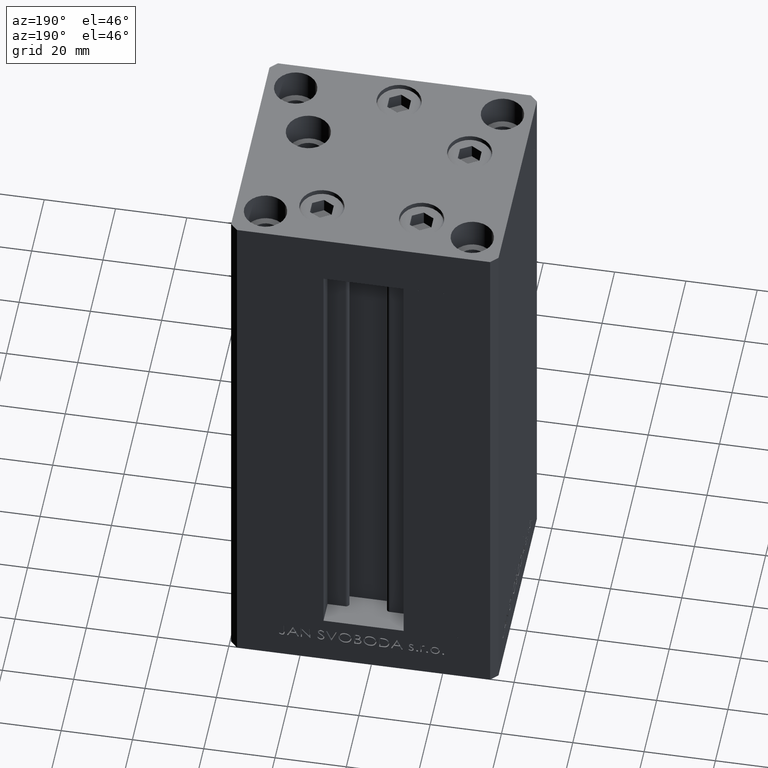
[diagram: clean part render]
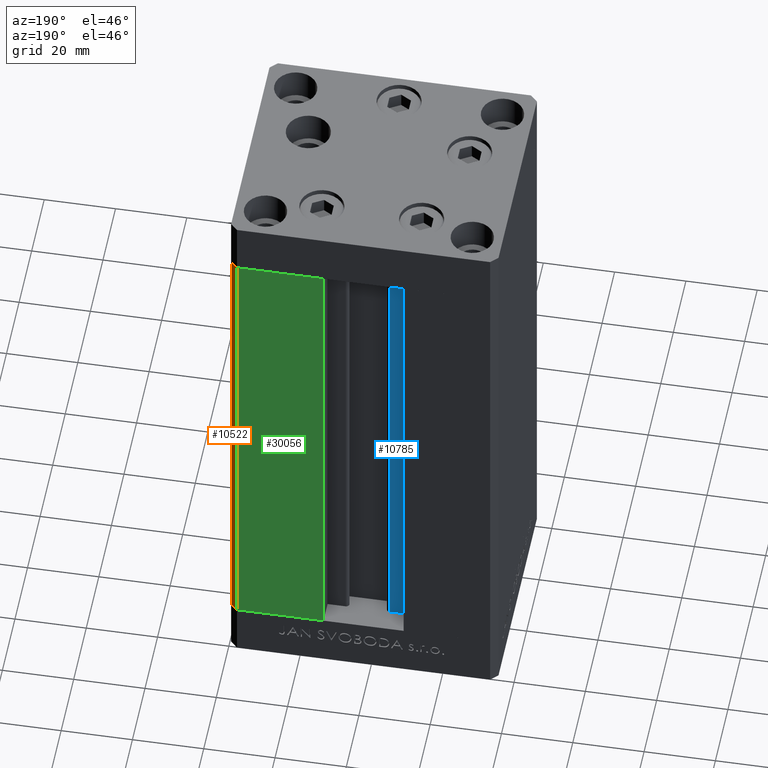
[diagram: same view with three faces highlighted in distinct colors, each labeled with its STEP entity id]
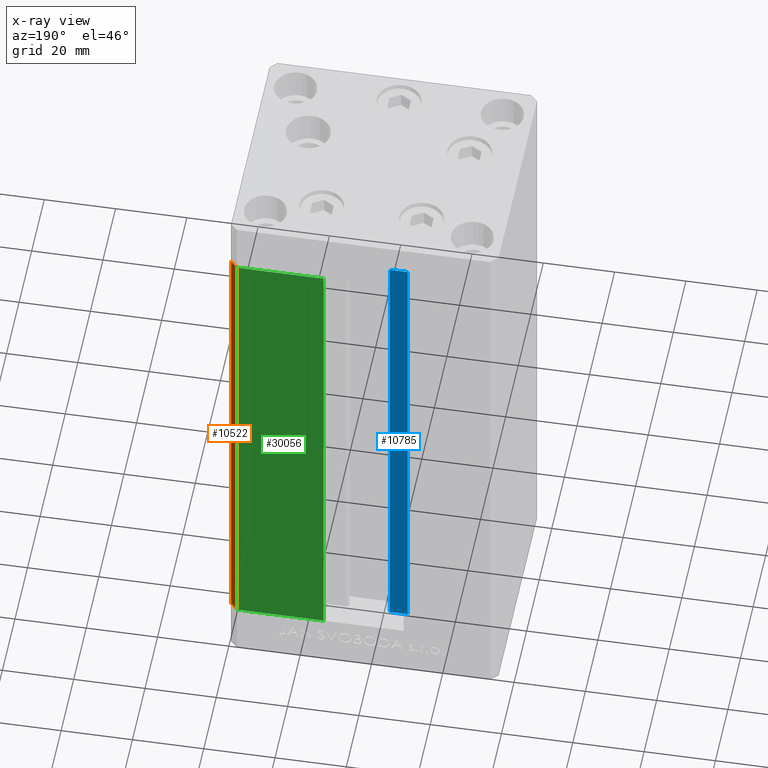
[diagram: x-ray of the same camera — body ghosted, the three highlighted faces saturated]
A machine part, auxiliary view with three faces highlighted in distinct colors.
The next image is the same camera in x-ray (body ghosted, the three faces saturated) — at least one of them is partly hidden behind the body in this view.
Their STEP definitions:

[orange] entity #10522 — the highlighted planar face has unit normal (0.7071, 0.7071, 0).
#2186 = CARTESIAN_POINT ( 'NONE',  ( 37.50000000000000711, 30.50000000000000000, 0.000000000000000000 ) ) ;
#2499 = CARTESIAN_POINT ( 'NONE',  ( 35.50000000000000000, 32.49999999999999289, 0.000000000000000000 ) ) ;
#2663 = VECTOR ( 'NONE', #22016, 1000.000000000000000 ) ;
#7436 = DIRECTION ( 'NONE',  ( 0.7071067811865500152, -0.7071067811865451302, 0.000000000000000000 ) ) ;
#8235 = ORIENTED_EDGE ( 'NONE', *, *, #47077, .T. ) ;
#8411 = AXIS2_PLACEMENT_3D ( 'NONE', #44849, #26515, #37905 ) ;
#10522 = ADVANCED_FACE ( 'NONE', ( #26993 ), #48804, .T. ) ;
#11383 = LINE ( 'NONE', #22997, #38099 ) ;
#11617 = LINE ( 'NONE', #37855, #2663 ) ;
#12295 = DIRECTION ( 'NONE',  ( 0.7071067811865500152, -0.7071067811865451302, 0.000000000000000000 ) ) ;
#12700 = ORIENTED_EDGE ( 'NONE', *, *, #33743, .T. ) ;
#19472 = LINE ( 'NONE', #34824, #29603 ) ;
#22016 = DIRECTION ( 'NONE',  ( -0.000000000000000000, -0.000000000000000000, -1.000000000000000000 ) ) ;
#22078 = CARTESIAN_POINT ( 'NONE',  ( 35.50000000000000000, 32.49999999999999289, 136.0000000000000000 ) ) ;
#22559 = VERTEX_POINT ( 'NONE', #22078 ) ;
#22997 = CARTESIAN_POINT ( 'NONE',  ( 35.50000000000000000, 32.49999999999999289, 0.000000000000000000 ) ) ;
#23347 = ORIENTED_EDGE ( 'NONE', *, *, #28988, .F. ) ;
#23779 = LINE ( 'NONE', #46550, #40508 ) ;
#25322 = VERTEX_POINT ( 'NONE', #2186 ) ;
#26515 = DIRECTION ( 'NONE',  ( 0.7071067811865451302, 0.7071067811865500152, -0.000000000000000000 ) ) ;
#26993 = FACE_OUTER_BOUND ( 'NONE', #44268, .T. ) ;
#28988 = EDGE_CURVE ( 'NONE', #34823, #25322, #11383, .T. ) ;
#29603 = VECTOR ( 'NONE', #12295, 1000.000000000000114 ) ;
#33743 = EDGE_CURVE ( 'NONE', #40443, #25322, #23779, .T. ) ;
#34823 = VERTEX_POINT ( 'NONE', #2499 ) ;
#34824 = CARTESIAN_POINT ( 'NONE',  ( 35.50000000000000000, 32.49999999999999289, 136.0000000000000000 ) ) ;
#35169 = DIRECTION ( 'NONE',  ( -0.000000000000000000, -0.000000000000000000, -1.000000000000000000 ) ) ;
#36165 = CARTESIAN_POINT ( 'NONE',  ( 37.50000000000000711, 30.50000000000000000, 136.0000000000000000 ) ) ;
#37472 = ORIENTED_EDGE ( 'NONE', *, *, #44579, .F. ) ;
#37855 = CARTESIAN_POINT ( 'NONE',  ( 35.50000000000000000, 32.49999999999999289, 136.0000000000000000 ) ) ;
#37905 = DIRECTION ( 'NONE',  ( -0.7071067811865500152, 0.7071067811865451302, 0.000000000000000000 ) ) ;
#38099 = VECTOR ( 'NONE', #7436, 1000.000000000000114 ) ;
#40443 = VERTEX_POINT ( 'NONE', #36165 ) ;
#40508 = VECTOR ( 'NONE', #35169, 1000.000000000000000 ) ;
#44268 = EDGE_LOOP ( 'NONE', ( #23347, #37472, #8235, #12700 ) ) ;
#44579 = EDGE_CURVE ( 'NONE', #22559, #34823, #11617, .T. ) ;
#44849 = CARTESIAN_POINT ( 'NONE',  ( 35.50000000000000000, 32.49999999999999289, 136.0000000000000000 ) ) ;
#46550 = CARTESIAN_POINT ( 'NONE',  ( 37.50000000000000711, 30.50000000000000000, 136.0000000000000000 ) ) ;
#47077 = EDGE_CURVE ( 'NONE', #22559, #40443, #19472, .T. ) ;
#48804 = PLANE ( 'NONE',  #8411 ) ;

[blue] entity #10785 — the highlighted planar face has unit normal (0, -1, 0).
#1557 = DIRECTION ( 'NONE',  ( -0.000000000000000000, -0.000000000000000000, 1.000000000000000000 ) ) ;
#5561 = DIRECTION ( 'NONE',  ( -0.000000000000000000, -0.000000000000000000, 1.000000000000000000 ) ) ;
#8083 = CARTESIAN_POINT ( 'NONE',  ( -6.183333333334001480, 25.99999999999999289, 136.0000000000000000 ) ) ;
#8398 = FACE_OUTER_BOUND ( 'NONE', #39511, .T. ) ;
#9199 = DIRECTION ( 'NONE',  ( 1.000000000000000000, -0.000000000000000000, -0.000000000000000000 ) ) ;
#9292 = VECTOR ( 'NONE', #1557, 1000.000000000000000 ) ;
#10785 = ADVANCED_FACE ( 'NONE', ( #8398 ), #12335, .F. ) ;
#12335 = PLANE ( 'NONE',  #16305 ) ;
#13874 = CARTESIAN_POINT ( 'NONE',  ( -6.183333333334001480, 25.99999999999999289, 0.000000000000000000 ) ) ;
#14383 = DIRECTION ( 'NONE',  ( -1.000000000000000000, 0.000000000000000000, 0.000000000000000000 ) ) ;
#16096 = VECTOR ( 'NONE', #9199, 1000.000000000000000 ) ;
#16305 = AXIS2_PLACEMENT_3D ( 'NONE', #16536, #46239, #35602 ) ;
#16536 = CARTESIAN_POINT ( 'NONE',  ( -6.183333333334001480, 25.99999999999999289, 0.000000000000000000 ) ) ;
#16696 = EDGE_CURVE ( 'NONE', #34606, #46207, #20840, .T. ) ;
#18147 = ORIENTED_EDGE ( 'NONE', *, *, #16696, .T. ) ;
#20840 = LINE ( 'NONE', #35944, #9292 ) ;
#21357 = CARTESIAN_POINT ( 'NONE',  ( -6.183333333334001480, 25.99999999999999289, 0.000000000000000000 ) ) ;
#23157 = EDGE_CURVE ( 'NONE', #32219, #46207, #36184, .T. ) ;
#23804 = ORIENTED_EDGE ( 'NONE', *, *, #30536, .F. ) ;
#27821 = LINE ( 'NONE', #35504, #45167 ) ;
#28752 = CARTESIAN_POINT ( 'NONE',  ( 0.000000000000000000, 25.99999999999999289, 136.0000000000000000 ) ) ;
#29821 = CARTESIAN_POINT ( 'NONE',  ( -11.25000000000000178, 25.99999999999999289, 0.000000000000000000 ) ) ;
#30536 = EDGE_CURVE ( 'NONE', #35624, #32219, #27821, .T. ) ;
#32219 = VERTEX_POINT ( 'NONE', #8083 ) ;
#32691 = LINE ( 'NONE', #13874, #16096 ) ;
#33748 = ORIENTED_EDGE ( 'NONE', *, *, #23157, .F. ) ;
#34606 = VERTEX_POINT ( 'NONE', #29821 ) ;
#34786 = VECTOR ( 'NONE', #14383, 1000.000000000000000 ) ;
#35504 = CARTESIAN_POINT ( 'NONE',  ( -6.183333333334001480, 25.99999999999999289, 0.000000000000000000 ) ) ;
#35602 = DIRECTION ( 'NONE',  ( 0.000000000000000000, 0.000000000000000000, -1.000000000000000000 ) ) ;
#35624 = VERTEX_POINT ( 'NONE', #21357 ) ;
#35944 = CARTESIAN_POINT ( 'NONE',  ( -11.25000000000000178, 25.99999999999999289, 0.000000000000000000 ) ) ;
#36184 = LINE ( 'NONE', #28752, #34786 ) ;
#38286 = CARTESIAN_POINT ( 'NONE',  ( -11.25000000000000178, 25.99999999999999289, 136.0000000000000000 ) ) ;
#39511 = EDGE_LOOP ( 'NONE', ( #23804, #42206, #18147, #33748 ) ) ;
#42206 = ORIENTED_EDGE ( 'NONE', *, *, #45755, .F. ) ;
#45167 = VECTOR ( 'NONE', #5561, 1000.000000000000000 ) ;
#45755 = EDGE_CURVE ( 'NONE', #34606, #35624, #32691, .T. ) ;
#46207 = VERTEX_POINT ( 'NONE', #38286 ) ;
#46239 = DIRECTION ( 'NONE',  ( 0.000000000000000000, -1.000000000000000000, -0.000000000000000000 ) ) ;

[green] entity #30056 — the highlighted planar face has unit normal (0, -1, 0).
#2499 = CARTESIAN_POINT ( 'NONE',  ( 35.50000000000000000, 32.49999999999999289, 0.000000000000000000 ) ) ;
#2663 = VECTOR ( 'NONE', #22016, 1000.000000000000000 ) ;
#2894 = DIRECTION ( 'NONE',  ( -0.000000000000000000, -0.000000000000000000, 1.000000000000000000 ) ) ;
#3647 = ORIENTED_EDGE ( 'NONE', *, *, #6700, .T. ) ;
#4517 = PLANE ( 'NONE',  #9600 ) ;
#4956 = LINE ( 'NONE', #5200, #7236 ) ;
#5005 = FACE_OUTER_BOUND ( 'NONE', #35389, .T. ) ;
#5200 = CARTESIAN_POINT ( 'NONE',  ( 11.25000000000000178, 32.49999999999999289, 0.000000000000000000 ) ) ;
#5457 = VECTOR ( 'NONE', #8379, 1000.000000000000000 ) ;
#5838 = LINE ( 'NONE', #47892, #20372 ) ;
#6700 = EDGE_CURVE ( 'NONE', #34823, #19424, #39049, .T. ) ;
#7236 = VECTOR ( 'NONE', #2894, 1000.000000000000000 ) ;
#8379 = DIRECTION ( 'NONE',  ( -1.000000000000000000, 0.000000000000000000, 0.000000000000000000 ) ) ;
#8475 = CARTESIAN_POINT ( 'NONE',  ( -11.25000000000000178, 32.49999999999999289, 136.0000000000000000 ) ) ;
#9587 = ORIENTED_EDGE ( 'NONE', *, *, #13683, .T. ) ;
#9600 = AXIS2_PLACEMENT_3D ( 'NONE', #8475, #23550, #23304 ) ;
#9827 = CARTESIAN_POINT ( 'NONE',  ( 11.25000000000000178, 32.49999999999999289, 0.000000000000000000 ) ) ;
#11617 = LINE ( 'NONE', #37855, #2663 ) ;
#13683 = EDGE_CURVE ( 'NONE', #22617, #22559, #5838, .T. ) ;
#15543 = CARTESIAN_POINT ( 'NONE',  ( -11.25000000000000178, 32.49999999999999289, 0.000000000000000000 ) ) ;
#19424 = VERTEX_POINT ( 'NONE', #9827 ) ;
#20372 = VECTOR ( 'NONE', #43202, 1000.000000000000000 ) ;
#22016 = DIRECTION ( 'NONE',  ( -0.000000000000000000, -0.000000000000000000, -1.000000000000000000 ) ) ;
#22078 = CARTESIAN_POINT ( 'NONE',  ( 35.50000000000000000, 32.49999999999999289, 136.0000000000000000 ) ) ;
#22559 = VERTEX_POINT ( 'NONE', #22078 ) ;
#22617 = VERTEX_POINT ( 'NONE', #33224 ) ;
#23304 = DIRECTION ( 'NONE',  ( 0.000000000000000000, -0.000000000000000000, -1.000000000000000000 ) ) ;
#23550 = DIRECTION ( 'NONE',  ( 0.000000000000000000, -1.000000000000000000, 0.000000000000000000 ) ) ;
#26636 = EDGE_CURVE ( 'NONE', #19424, #22617, #4956, .T. ) ;
#30056 = ADVANCED_FACE ( 'NONE', ( #5005 ), #4517, .F. ) ;
#33224 = CARTESIAN_POINT ( 'NONE',  ( 11.24999999999999467, 32.49999999999999289, 136.0000000000000000 ) ) ;
#34374 = ORIENTED_EDGE ( 'NONE', *, *, #44579, .T. ) ;
#34817 = ORIENTED_EDGE ( 'NONE', *, *, #26636, .T. ) ;
#34823 = VERTEX_POINT ( 'NONE', #2499 ) ;
#35389 = EDGE_LOOP ( 'NONE', ( #3647, #34817, #9587, #34374 ) ) ;
#37855 = CARTESIAN_POINT ( 'NONE',  ( 35.50000000000000000, 32.49999999999999289, 136.0000000000000000 ) ) ;
#39049 = LINE ( 'NONE', #15543, #5457 ) ;
#43202 = DIRECTION ( 'NONE',  ( 1.000000000000000000, 0.000000000000000000, 0.000000000000000000 ) ) ;
#44579 = EDGE_CURVE ( 'NONE', #22559, #34823, #11617, .T. ) ;
#47892 = CARTESIAN_POINT ( 'NONE',  ( -11.25000000000000178, 32.49999999999999289, 136.0000000000000000 ) ) ;